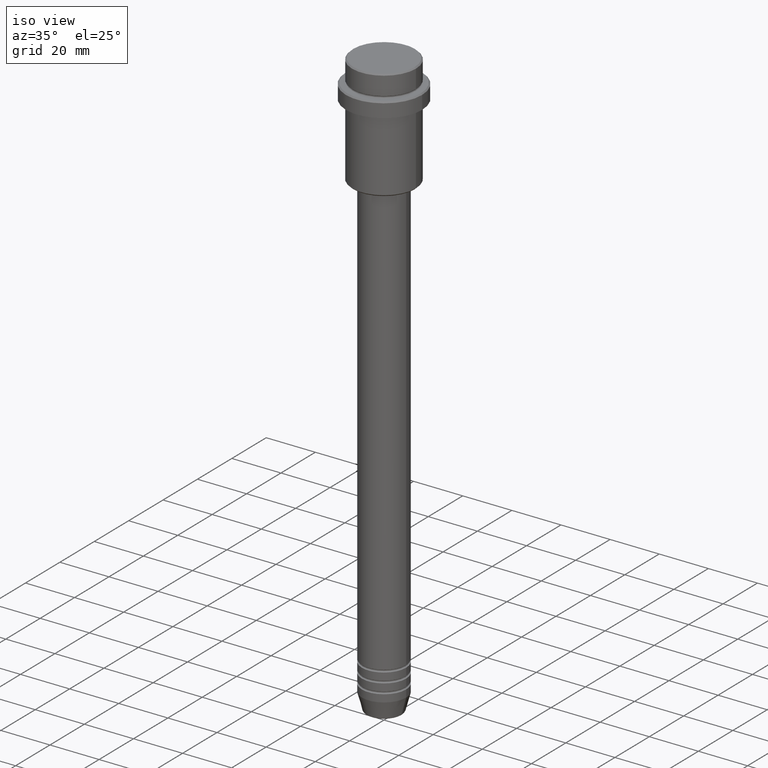
[diagram: clean part render]
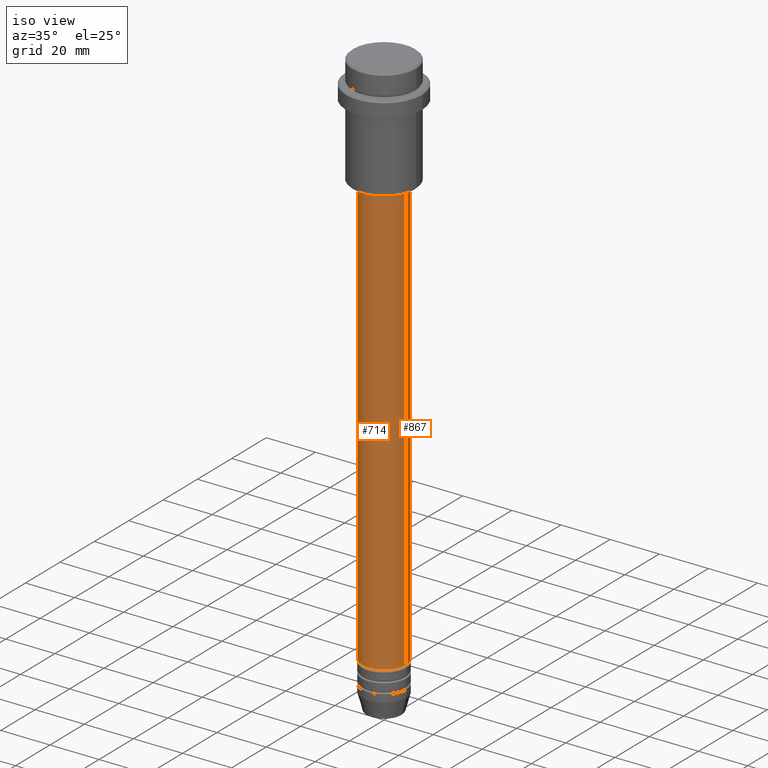
[diagram: same view with one multi-face feature highlighted, each face labeled with its STEP entity id]
A machine part, iso view. The highlighted faces form ONE feature: a constant-radius fillet chain: 2 tangent blend faces with common blend radius 9 mm. The faces share edges in the B-rep.
Their STEP definitions:
[1] entity #714 (Cylinder):
#11 = CIRCLE ( 'NONE', #245, 9.000000000000001776 ) ;
#102 = DIRECTION ( 'NONE',  ( -0.000000000000000000, -0.000000000000000000, 1.000000000000000000 ) ) ;
#165 = CARTESIAN_POINT ( 'NONE',  ( 0.000000000000000000, 0.000000000000000000, -220.9999999999999432 ) ) ;
#245 = AXIS2_PLACEMENT_3D ( 'NONE', #1303, #102, #549 ) ;
#268 = VECTOR ( 'NONE', #1093, 1000.000000000000000 ) ;
#299 = VERTEX_POINT ( 'NONE', #506 ) ;
#348 = EDGE_LOOP ( 'NONE', ( #923, #509, #383, #871 ) ) ;
#381 = LINE ( 'NONE', #711, #907 ) ;
#383 = ORIENTED_EDGE ( 'NONE', *, *, #1245, .T. ) ;
#396 = CYLINDRICAL_SURFACE ( 'NONE', #1244, 9.000000000000001776 ) ;
#504 = DIRECTION ( 'NONE',  ( -0.000000000000000000, -0.000000000000000000, 1.000000000000000000 ) ) ;
#506 = CARTESIAN_POINT ( 'NONE',  ( -9.000000000000000000, 1.102182119232617714E-15, -220.9999999999999432 ) ) ;
#509 = ORIENTED_EDGE ( 'NONE', *, *, #708, .T. ) ;
#528 = DIRECTION ( 'NONE',  ( 1.000000000000000000, 0.000000000000000000, 0.000000000000000000 ) ) ;
#549 = DIRECTION ( 'NONE',  ( 1.000000000000000000, 0.000000000000000000, 0.000000000000000000 ) ) ;
#602 = VERTEX_POINT ( 'NONE', #1350 ) ;
#605 = FACE_OUTER_BOUND ( 'NONE', #348, .T. ) ;
#667 = LINE ( 'NONE', #1200, #268 ) ;
#708 = EDGE_CURVE ( 'NONE', #299, #602, #1062, .T. ) ;
#711 = CARTESIAN_POINT ( 'NONE',  ( -9.000000000000001776, 1.102182119232617911E-15, 0.000000000000000000 ) ) ;
#714 = ADVANCED_FACE ( 'NONE', ( #605 ), #396, .T. ) ;
#860 = AXIS2_PLACEMENT_3D ( 'NONE', #165, #1373, #1380 ) ;
#871 = ORIENTED_EDGE ( 'NONE', *, *, #917, .F. ) ;
#907 = VECTOR ( 'NONE', #1050, 1000.000000000000000 ) ;
#917 = EDGE_CURVE ( 'NONE', #1335, #935, #11, .T. ) ;
#923 = ORIENTED_EDGE ( 'NONE', *, *, #1166, .F. ) ;
#935 = VERTEX_POINT ( 'NONE', #1309 ) ;
#1050 = DIRECTION ( 'NONE',  ( -0.000000000000000000, -0.000000000000000000, 1.000000000000000000 ) ) ;
#1062 = CIRCLE ( 'NONE', #860, 9.000000000000000000 ) ;
#1093 = DIRECTION ( 'NONE',  ( -0.000000000000000000, -0.000000000000000000, 1.000000000000000000 ) ) ;
#1166 = EDGE_CURVE ( 'NONE', #299, #1335, #381, .T. ) ;
#1200 = CARTESIAN_POINT ( 'NONE',  ( 9.000000000000001776, 0.000000000000000000, 0.000000000000000000 ) ) ;
#1207 = CARTESIAN_POINT ( 'NONE',  ( -9.000000000000001776, 1.102182119232617911E-15, -46.00000000000002132 ) ) ;
#1244 = AXIS2_PLACEMENT_3D ( 'NONE', #1260, #504, #528 ) ;
#1245 = EDGE_CURVE ( 'NONE', #602, #935, #667, .T. ) ;
#1260 = CARTESIAN_POINT ( 'NONE',  ( 0.000000000000000000, 0.000000000000000000, 0.000000000000000000 ) ) ;
#1303 = CARTESIAN_POINT ( 'NONE',  ( 0.000000000000000000, 0.000000000000000000, -46.00000000000002132 ) ) ;
#1309 = CARTESIAN_POINT ( 'NONE',  ( 9.000000000000001776, 0.000000000000000000, -46.00000000000002132 ) ) ;
#1335 = VERTEX_POINT ( 'NONE', #1207 ) ;
#1350 = CARTESIAN_POINT ( 'NONE',  ( 9.000000000000000000, 0.000000000000000000, -220.9999999999999432 ) ) ;
#1373 = DIRECTION ( 'NONE',  ( -0.000000000000000000, -0.000000000000000000, 1.000000000000000000 ) ) ;
#1380 = DIRECTION ( 'NONE',  ( 1.000000000000000000, 0.000000000000000000, 0.000000000000000000 ) ) ;
[2] entity #867 (Cylinder):
#5 = DIRECTION ( 'NONE',  ( 1.000000000000000000, 0.000000000000000000, 0.000000000000000000 ) ) ;
#126 = AXIS2_PLACEMENT_3D ( 'NONE', #643, #1187, #427 ) ;
#187 = EDGE_LOOP ( 'NONE', ( #604, #1032, #990, #874 ) ) ;
#216 = CARTESIAN_POINT ( 'NONE',  ( 0.000000000000000000, 0.000000000000000000, -46.00000000000002132 ) ) ;
#268 = VECTOR ( 'NONE', #1093, 1000.000000000000000 ) ;
#269 = DIRECTION ( 'NONE',  ( 1.000000000000000000, 0.000000000000000000, 0.000000000000000000 ) ) ;
#299 = VERTEX_POINT ( 'NONE', #506 ) ;
#381 = LINE ( 'NONE', #711, #907 ) ;
#427 = DIRECTION ( 'NONE',  ( 1.000000000000000000, 0.000000000000000000, 0.000000000000000000 ) ) ;
#467 = AXIS2_PLACEMENT_3D ( 'NONE', #1022, #479, #269 ) ;
#479 = DIRECTION ( 'NONE',  ( -0.000000000000000000, -0.000000000000000000, 1.000000000000000000 ) ) ;
#506 = CARTESIAN_POINT ( 'NONE',  ( -9.000000000000000000, 1.102182119232617714E-15, -220.9999999999999432 ) ) ;
#599 = EDGE_CURVE ( 'NONE', #602, #299, #632, .T. ) ;
#602 = VERTEX_POINT ( 'NONE', #1350 ) ;
#604 = ORIENTED_EDGE ( 'NONE', *, *, #599, .T. ) ;
#632 = CIRCLE ( 'NONE', #467, 9.000000000000000000 ) ;
#643 = CARTESIAN_POINT ( 'NONE',  ( 0.000000000000000000, 0.000000000000000000, 0.000000000000000000 ) ) ;
#652 = DIRECTION ( 'NONE',  ( -0.000000000000000000, -0.000000000000000000, 1.000000000000000000 ) ) ;
#667 = LINE ( 'NONE', #1200, #268 ) ;
#711 = CARTESIAN_POINT ( 'NONE',  ( -9.000000000000001776, 1.102182119232617911E-15, 0.000000000000000000 ) ) ;
#757 = FACE_OUTER_BOUND ( 'NONE', #187, .T. ) ;
#867 = ADVANCED_FACE ( 'NONE', ( #757 ), #877, .T. ) ;
#874 = ORIENTED_EDGE ( 'NONE', *, *, #1245, .F. ) ;
#877 = CYLINDRICAL_SURFACE ( 'NONE', #126, 9.000000000000001776 ) ;
#907 = VECTOR ( 'NONE', #1050, 1000.000000000000000 ) ;
#935 = VERTEX_POINT ( 'NONE', #1309 ) ;
#978 = CIRCLE ( 'NONE', #1225, 9.000000000000001776 ) ;
#990 = ORIENTED_EDGE ( 'NONE', *, *, #1318, .F. ) ;
#1022 = CARTESIAN_POINT ( 'NONE',  ( 0.000000000000000000, 0.000000000000000000, -220.9999999999999432 ) ) ;
#1032 = ORIENTED_EDGE ( 'NONE', *, *, #1166, .T. ) ;
#1050 = DIRECTION ( 'NONE',  ( -0.000000000000000000, -0.000000000000000000, 1.000000000000000000 ) ) ;
#1093 = DIRECTION ( 'NONE',  ( -0.000000000000000000, -0.000000000000000000, 1.000000000000000000 ) ) ;
#1166 = EDGE_CURVE ( 'NONE', #299, #1335, #381, .T. ) ;
#1187 = DIRECTION ( 'NONE',  ( -0.000000000000000000, -0.000000000000000000, 1.000000000000000000 ) ) ;
#1200 = CARTESIAN_POINT ( 'NONE',  ( 9.000000000000001776, 0.000000000000000000, 0.000000000000000000 ) ) ;
#1207 = CARTESIAN_POINT ( 'NONE',  ( -9.000000000000001776, 1.102182119232617911E-15, -46.00000000000002132 ) ) ;
#1225 = AXIS2_PLACEMENT_3D ( 'NONE', #216, #652, #5 ) ;
#1245 = EDGE_CURVE ( 'NONE', #602, #935, #667, .T. ) ;
#1309 = CARTESIAN_POINT ( 'NONE',  ( 9.000000000000001776, 0.000000000000000000, -46.00000000000002132 ) ) ;
#1318 = EDGE_CURVE ( 'NONE', #935, #1335, #978, .T. ) ;
#1335 = VERTEX_POINT ( 'NONE', #1207 ) ;
#1350 = CARTESIAN_POINT ( 'NONE',  ( 9.000000000000000000, 0.000000000000000000, -220.9999999999999432 ) ) ;